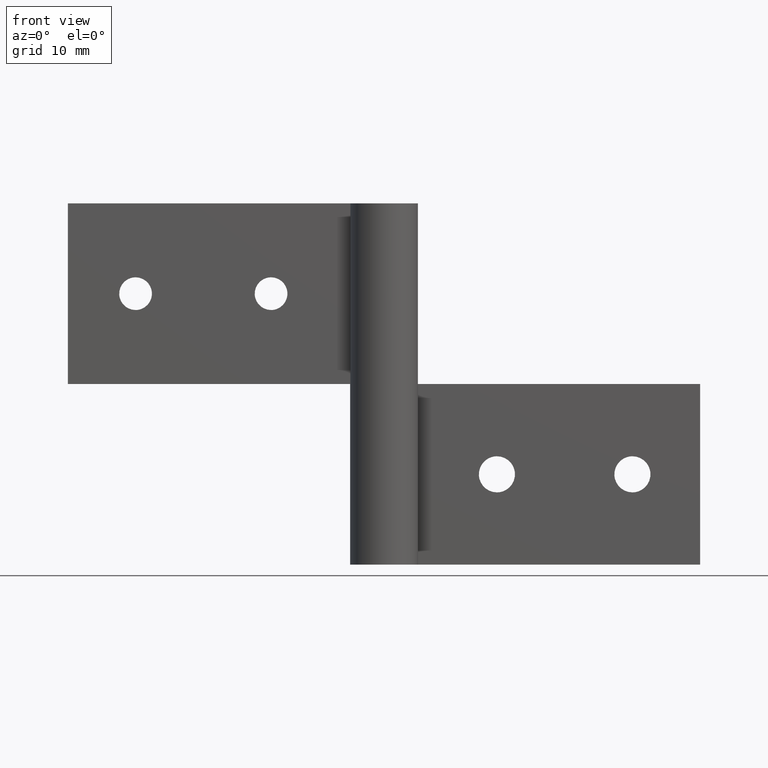
[diagram: clean part render]
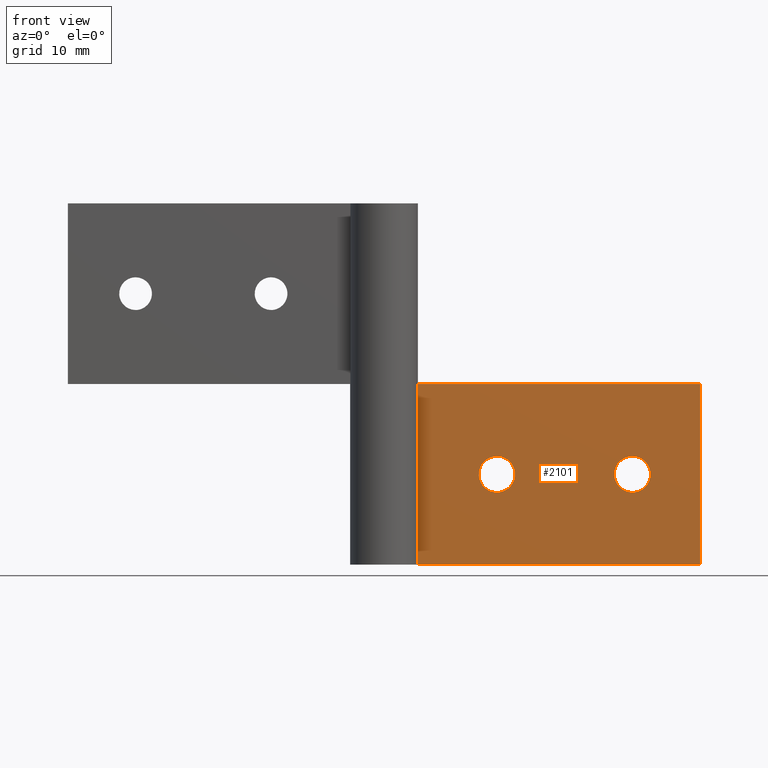
[diagram: same view with one face highlighted and labeled with its STEP entity id]
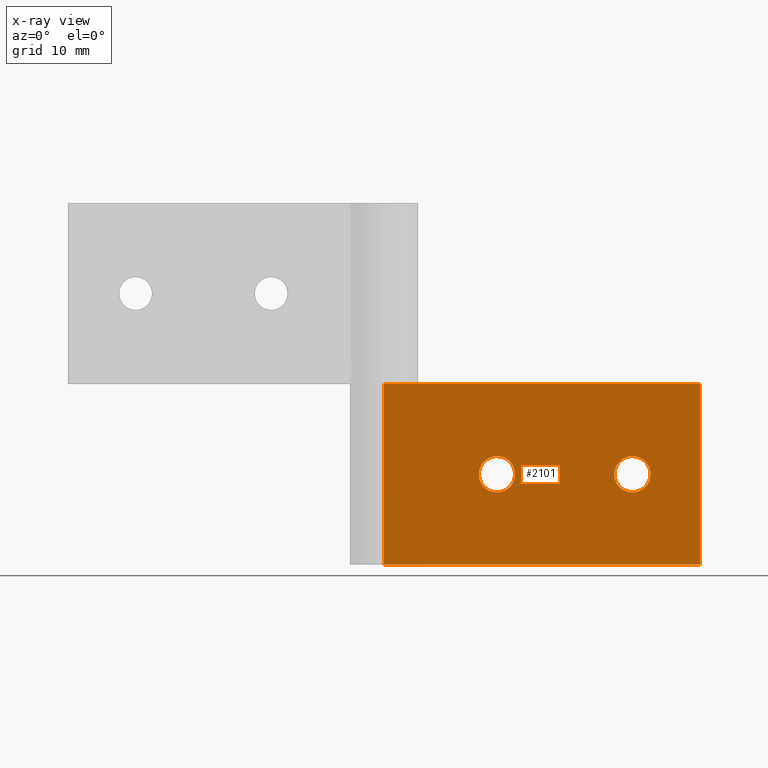
[diagram: x-ray of the same camera — body ghosted, the highlighted face saturated]
A machine part, front view. The second image highlights one B-rep face of the part: STEP entity #2101.
The next image is the same camera in x-ray: the body ghosted, the highlighted face saturated — about 0% of this face is hidden behind the body in this view.
In plain terms, the highlighted face is a freeform B-spline surface patch.
Its self-contained STEP definition (entity closure, byte-faithful):
#1466=CARTESIAN_POINT('',(23.588815242162749,1.500000000000000,8.188854775611610));
#1467=VERTEX_POINT('',#1466);
#1468=CARTESIAN_POINT('',(22.0,1.500000000000000,6.400000000000000));
#1469=VERTEX_POINT('',#1468);
#1470=CARTESIAN_POINT('',(23.588815242162752,1.500000000000000,8.188854775611610));
#1471=CARTESIAN_POINT('',(23.599999999999994,1.500000000000000,8.094758591605553));
#1472=CARTESIAN_POINT('',(23.600000000000001,1.500000000000000,8.0));
#1473=CARTESIAN_POINT('',(23.599999999999998,1.500000000000000,6.400000000000000));
#1474=CARTESIAN_POINT('',(22.0,1.500000000000000,6.400000000000000));
#1482=(BOUNDED_CURVE()B_SPLINE_CURVE(2,(#1470,#1471,#1472,#1473,#1474),.UNSPECIFIED.,.F.,.U.)B_SPLINE_CURVE_WITH_KNOTS((3,2,3),(0.229562473481436,0.250000000000000,0.500000000000000),.UNSPECIFIED.)CURVE()GEOMETRIC_REPRESENTATION_ITEM()RATIONAL_B_SPLINE_CURVE((0.956026754120836,0.976055948293570,1.0,0.707106781186548,1.0))REPRESENTATION_ITEM(''));
#1483=EDGE_CURVE('',#1467,#1469,#1482,.T.);
#1524=CARTESIAN_POINT('',(20.402984322532060,1.500000000000000,7.902322336629080));
#1525=VERTEX_POINT('',#1524);
#1531=CARTESIAN_POINT('',(22.0,1.500000000000000,6.400000000000000));
#1532=CARTESIAN_POINT('',(20.494870293168336,1.500000000000000,6.400000000000000));
#1533=CARTESIAN_POINT('',(20.402984322532060,1.500000000000000,7.902322336629080));
#1541=(BOUNDED_CURVE()B_SPLINE_CURVE(2,(#1531,#1532,#1533),.UNSPECIFIED.,.F.,.U.)B_SPLINE_CURVE_WITH_KNOTS((3,3),(0.500000000000000,0.739332962217087),.UNSPECIFIED.)CURVE()GEOMETRIC_REPRESENTATION_ITEM()RATIONAL_B_SPLINE_CURVE((1.0,0.719603993312316,0.976072041619876))REPRESENTATION_ITEM(''));
#1542=EDGE_CURVE('',#1469,#1525,#1541,.T.);
#1565=CARTESIAN_POINT('',(22.0,1.500000000000000,9.600000000000001));
#1566=VERTEX_POINT('',#1565);
#1567=CARTESIAN_POINT('',(22.0,1.500000000000000,9.600000000000001));
#1568=CARTESIAN_POINT('',(23.421079241232523,1.500000000000000,9.600000000000003));
#1569=CARTESIAN_POINT('',(23.588815242162752,1.500000000000000,8.188854775611610));
#1577=(BOUNDED_CURVE()B_SPLINE_CURVE(2,(#1567,#1568,#1569),.UNSPECIFIED.,.F.,.U.)B_SPLINE_CURVE_WITH_KNOTS((3,3),(0.0,0.229562473481436),.UNSPECIFIED.)CURVE()GEOMETRIC_REPRESENTATION_ITEM()RATIONAL_B_SPLINE_CURVE((1.0,0.731050832892977,0.956026754120836))REPRESENTATION_ITEM(''));
#1578=EDGE_CURVE('',#1566,#1467,#1577,.T.);
#1580=CARTESIAN_POINT('',(20.402984322532060,1.500000000000000,7.902322336629080));
#1581=CARTESIAN_POINT('',(20.400000000000002,1.500000000000000,7.951115578606786));
#1582=CARTESIAN_POINT('',(20.399999999999999,1.500000000000000,8.0));
#1583=CARTESIAN_POINT('',(20.399999999999999,1.500000000000000,9.600000000000001));
#1584=CARTESIAN_POINT('',(22.0,1.500000000000000,9.600000000000001));
#1592=(BOUNDED_CURVE()B_SPLINE_CURVE(2,(#1580,#1581,#1582,#1583,#1584),.UNSPECIFIED.,.F.,.U.)B_SPLINE_CURVE_WITH_KNOTS((3,2,3),(0.739332962217086,0.750000000000000,1.0),.UNSPECIFIED.)CURVE()GEOMETRIC_REPRESENTATION_ITEM()RATIONAL_B_SPLINE_CURVE((0.976072041619875,0.987502787874231,1.0,0.707106781186548,1.0))REPRESENTATION_ITEM(''));
#1593=EDGE_CURVE('',#1525,#1566,#1592,.T.);
#1652=CARTESIAN_POINT('',(11.588815242162751,1.500000000000000,8.188854775611610));
#1653=VERTEX_POINT('',#1652);
#1654=CARTESIAN_POINT('',(10.0,1.500000000000000,6.400000000000000));
#1655=VERTEX_POINT('',#1654);
#1656=CARTESIAN_POINT('',(11.588815242162754,1.500000000000000,8.188854775611610));
#1657=CARTESIAN_POINT('',(11.599999999999998,1.500000000000000,8.094758591605553));
#1658=CARTESIAN_POINT('',(11.600000000000000,1.500000000000000,8.0));
#1659=CARTESIAN_POINT('',(11.600000000000001,1.500000000000000,6.400000000000000));
#1660=CARTESIAN_POINT('',(10.0,1.500000000000000,6.400000000000000));
#1668=(BOUNDED_CURVE()B_SPLINE_CURVE(2,(#1656,#1657,#1658,#1659,#1660),.UNSPECIFIED.,.F.,.U.)B_SPLINE_CURVE_WITH_KNOTS((3,2,3),(0.229562473481436,0.250000000000000,0.500000000000000),.UNSPECIFIED.)CURVE()GEOMETRIC_REPRESENTATION_ITEM()RATIONAL_B_SPLINE_CURVE((0.956026754120836,0.976055948293570,1.0,0.707106781186548,1.0))REPRESENTATION_ITEM(''));
#1669=EDGE_CURVE('',#1653,#1655,#1668,.T.);
#1710=CARTESIAN_POINT('',(8.402984322532056,1.500000000000000,7.902322336629082));
#1711=VERTEX_POINT('',#1710);
#1717=CARTESIAN_POINT('',(10.0,1.500000000000000,6.400000000000000));
#1718=CARTESIAN_POINT('',(8.494870293168335,1.500000000000000,6.400000000000000));
#1719=CARTESIAN_POINT('',(8.402984322532056,1.500000000000000,7.902322336629082));
#1727=(BOUNDED_CURVE()B_SPLINE_CURVE(2,(#1717,#1718,#1719),.UNSPECIFIED.,.F.,.U.)B_SPLINE_CURVE_WITH_KNOTS((3,3),(0.500000000000000,0.739332962217087),.UNSPECIFIED.)CURVE()GEOMETRIC_REPRESENTATION_ITEM()RATIONAL_B_SPLINE_CURVE((1.0,0.719603993312316,0.976072041619876))REPRESENTATION_ITEM(''));
#1728=EDGE_CURVE('',#1655,#1711,#1727,.T.);
#1751=CARTESIAN_POINT('',(10.0,1.500000000000000,9.600000000000001));
#1752=VERTEX_POINT('',#1751);
#1753=CARTESIAN_POINT('',(10.0,1.500000000000000,9.600000000000001));
#1754=CARTESIAN_POINT('',(11.421079241232523,1.500000000000000,9.600000000000003));
#1755=CARTESIAN_POINT('',(11.588815242162751,1.500000000000000,8.188854775611610));
#1763=(BOUNDED_CURVE()B_SPLINE_CURVE(2,(#1753,#1754,#1755),.UNSPECIFIED.,.F.,.U.)B_SPLINE_CURVE_WITH_KNOTS((3,3),(0.0,0.229562473481436),.UNSPECIFIED.)CURVE()GEOMETRIC_REPRESENTATION_ITEM()RATIONAL_B_SPLINE_CURVE((1.0,0.731050832892977,0.956026754120836))REPRESENTATION_ITEM(''));
#1764=EDGE_CURVE('',#1752,#1653,#1763,.T.);
#1766=CARTESIAN_POINT('',(8.402984322532056,1.500000000000000,7.902322336629082));
#1767=CARTESIAN_POINT('',(8.400000000000002,1.500000000000000,7.951115578606787));
#1768=CARTESIAN_POINT('',(8.400000000000000,1.500000000000000,8.0));
#1769=CARTESIAN_POINT('',(8.400000000000000,1.500000000000000,9.600000000000001));
#1770=CARTESIAN_POINT('',(10.0,1.500000000000000,9.600000000000001));
#1778=(BOUNDED_CURVE()B_SPLINE_CURVE(2,(#1766,#1767,#1768,#1769,#1770),.UNSPECIFIED.,.F.,.U.)B_SPLINE_CURVE_WITH_KNOTS((3,2,3),(0.739332962217086,0.750000000000000,1.0),.UNSPECIFIED.)CURVE()GEOMETRIC_REPRESENTATION_ITEM()RATIONAL_B_SPLINE_CURVE((0.976072041619875,0.987502787874231,1.0,0.707106781186548,1.0))REPRESENTATION_ITEM(''));
#1779=EDGE_CURVE('',#1711,#1752,#1778,.T.);
#1851=CARTESIAN_POINT('',(0.0,1.500000000000000,16.0));
#1852=VERTEX_POINT('',#1851);
#1872=CARTESIAN_POINT('',(28.000008000000001,1.500000000000000,16.0));
#1873=VERTEX_POINT('',#1872);
#1874=CARTESIAN_POINT('',(28.000008000000001,1.500000000000000,16.0));
#1875=CARTESIAN_POINT('',(0.0,1.500000000000000,16.0));
#1876=QUASI_UNIFORM_CURVE('',1,(#1874,#1875),.UNSPECIFIED.,.F.,.U.);
#1877=EDGE_CURVE('',#1873,#1852,#1876,.T.);
#1929=CARTESIAN_POINT('',(28.000008000000001,1.500000000000000,0.0));
#1930=VERTEX_POINT('',#1929);
#1936=CARTESIAN_POINT('',(0.0,1.500000000000000,0.0));
#1937=VERTEX_POINT('',#1936);
#1938=CARTESIAN_POINT('',(28.000008000000001,1.500000000000000,0.0));
#1939=CARTESIAN_POINT('',(0.0,1.500000000000000,0.0));
#1940=QUASI_UNIFORM_CURVE('',1,(#1938,#1939),.UNSPECIFIED.,.F.,.U.);
#1941=EDGE_CURVE('',#1930,#1937,#1940,.T.);
#2017=CARTESIAN_POINT('',(0.0,1.500000000000000,0.0));
#2018=CARTESIAN_POINT('',(0.0,1.500000000000000,16.0));
#2019=QUASI_UNIFORM_CURVE('',1,(#2017,#2018),.UNSPECIFIED.,.F.,.U.);
#2020=EDGE_CURVE('',#1937,#1852,#2019,.T.);
#2031=CARTESIAN_POINT('',(28.000008000000001,1.500000000000000,0.0));
#2032=CARTESIAN_POINT('',(28.000008000000001,1.500000000000000,16.0));
#2033=QUASI_UNIFORM_CURVE('',1,(#2031,#2032),.UNSPECIFIED.,.F.,.U.);
#2034=EDGE_CURVE('',#1930,#1873,#2033,.T.);
#2078=CARTESIAN_POINT('',(-1.398600245294859,1.500000000000000,-0.799199968988897));
#2079=CARTESIAN_POINT('',(-1.398600245294859,1.500000000000000,16.799200398142339));
#2080=CARTESIAN_POINT('',(29.398606993596960,1.500000000000000,-0.799199968988897));
#2081=CARTESIAN_POINT('',(29.398606993596960,1.500000000000000,16.799200398142339));
#2082=B_SPLINE_SURFACE_WITH_KNOTS('',1,1,((#2078,#2080),(#2079,#2081)),.UNSPECIFIED.,.F.,.F.,.U.,(2,2),(2,2),(0.0,17.598400367131241),(0.0,30.797207238891819),.UNSPECIFIED.);
#2083=ORIENTED_EDGE('',*,*,#1877,.T.);
#2084=ORIENTED_EDGE('',*,*,#2020,.F.);
#2085=ORIENTED_EDGE('',*,*,#1941,.F.);
#2086=ORIENTED_EDGE('',*,*,#2034,.T.);
#2087=EDGE_LOOP('',(#2083,#2084,#2085,#2086));
#2088=FACE_OUTER_BOUND('',#2087,.T.);
#2089=ORIENTED_EDGE('',*,*,#1728,.T.);
#2090=ORIENTED_EDGE('',*,*,#1779,.T.);
#2091=ORIENTED_EDGE('',*,*,#1764,.T.);
#2092=ORIENTED_EDGE('',*,*,#1669,.T.);
#2093=EDGE_LOOP('',(#2089,#2090,#2091,#2092));
#2094=FACE_BOUND('',#2093,.T.);
#2095=ORIENTED_EDGE('',*,*,#1542,.T.);
#2096=ORIENTED_EDGE('',*,*,#1593,.T.);
#2097=ORIENTED_EDGE('',*,*,#1578,.T.);
#2098=ORIENTED_EDGE('',*,*,#1483,.T.);
#2099=EDGE_LOOP('',(#2095,#2096,#2097,#2098));
#2100=FACE_BOUND('',#2099,.T.);
#2101=ADVANCED_FACE('',(#2088,#2094,#2100),#2082,.F.);